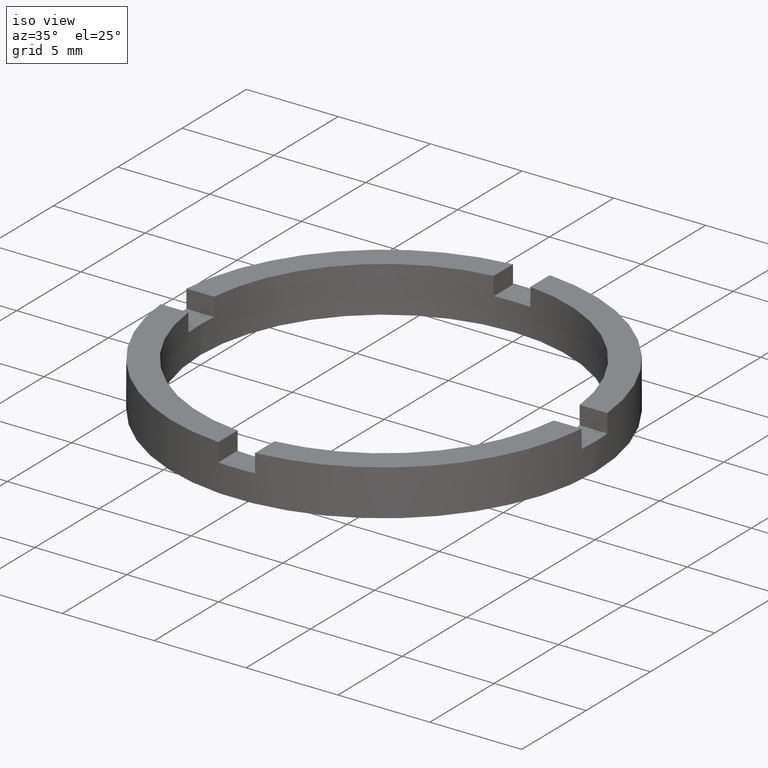
[diagram: clean part render]
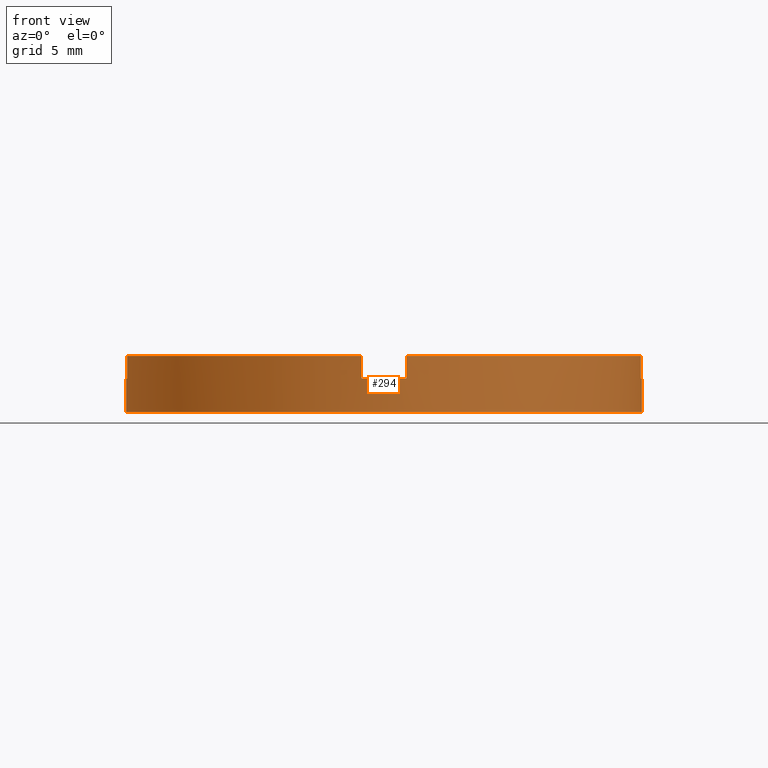
[diagram: tour spotlight — one face highlighted and labeled with its STEP entity id]
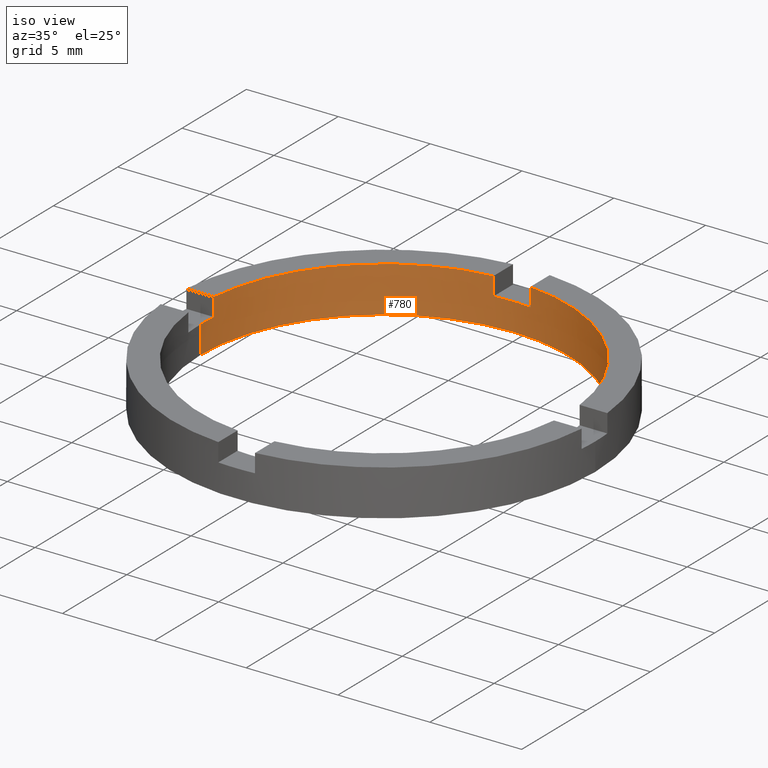
[diagram: tour spotlight — one face highlighted and labeled with its STEP entity id]
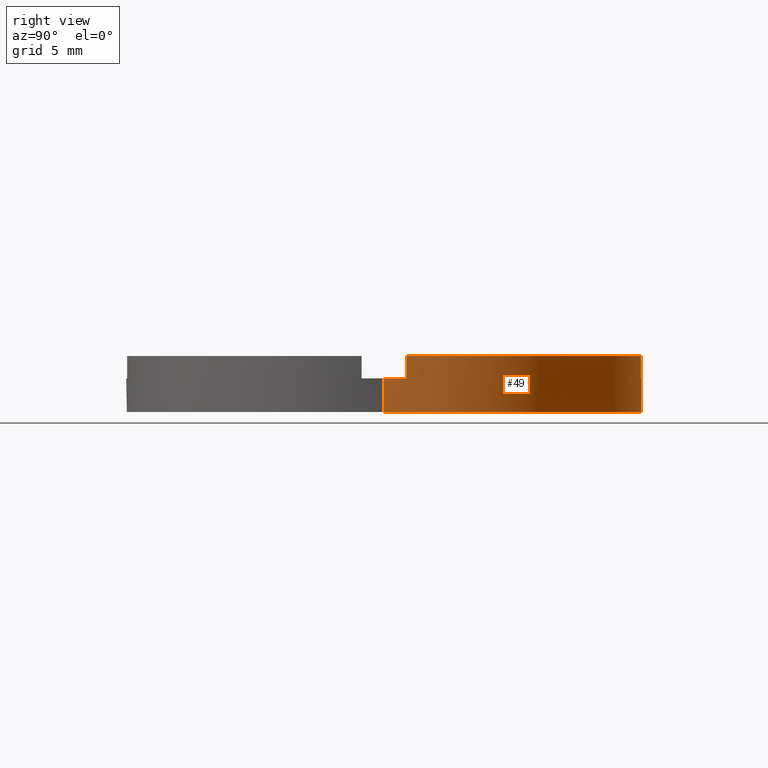
[diagram: tour spotlight — one face highlighted and labeled with its STEP entity id]
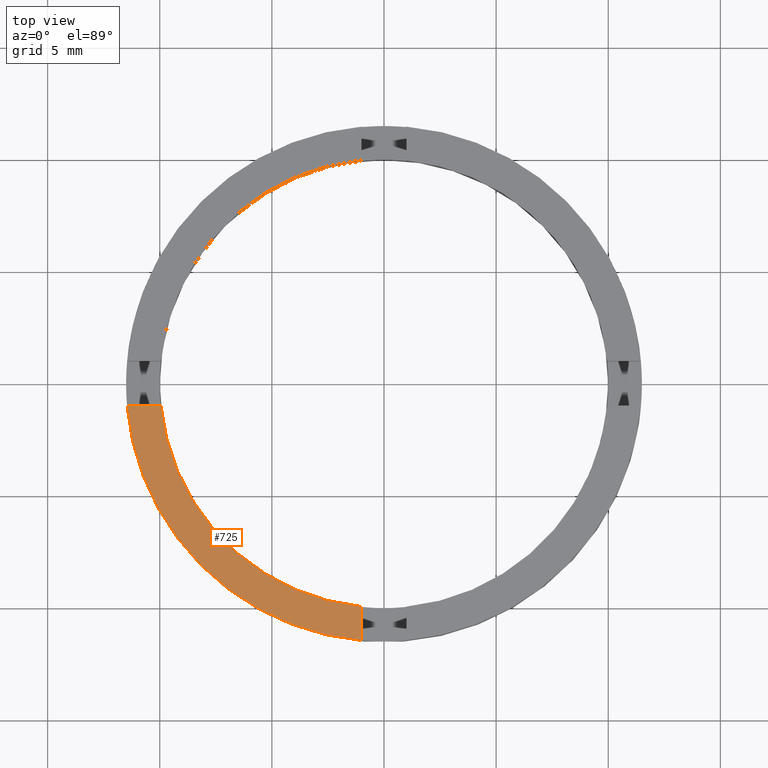
[diagram: tour spotlight — one face highlighted and labeled with its STEP entity id]
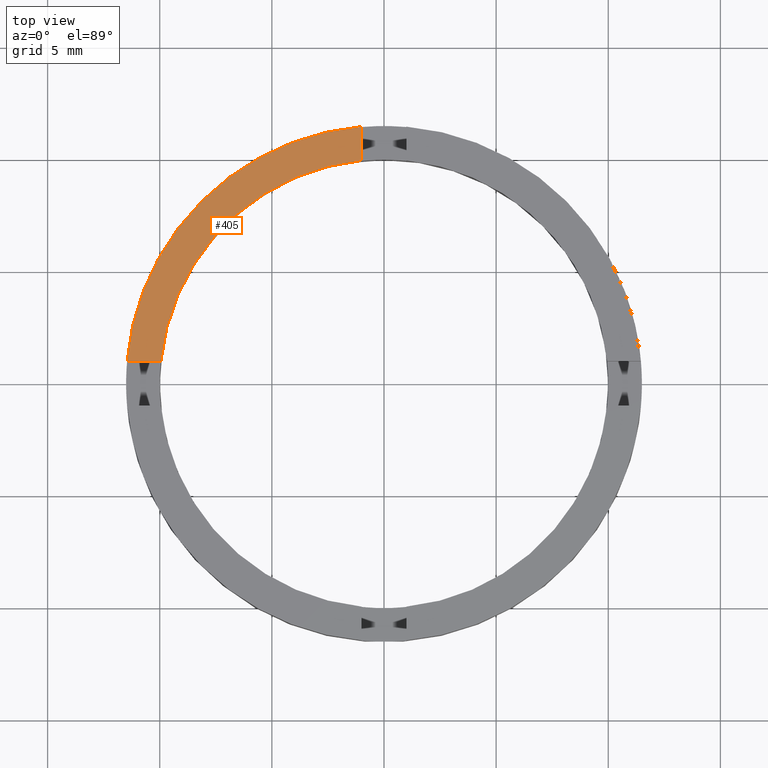
[diagram: tour spotlight — one face highlighted and labeled with its STEP entity id]
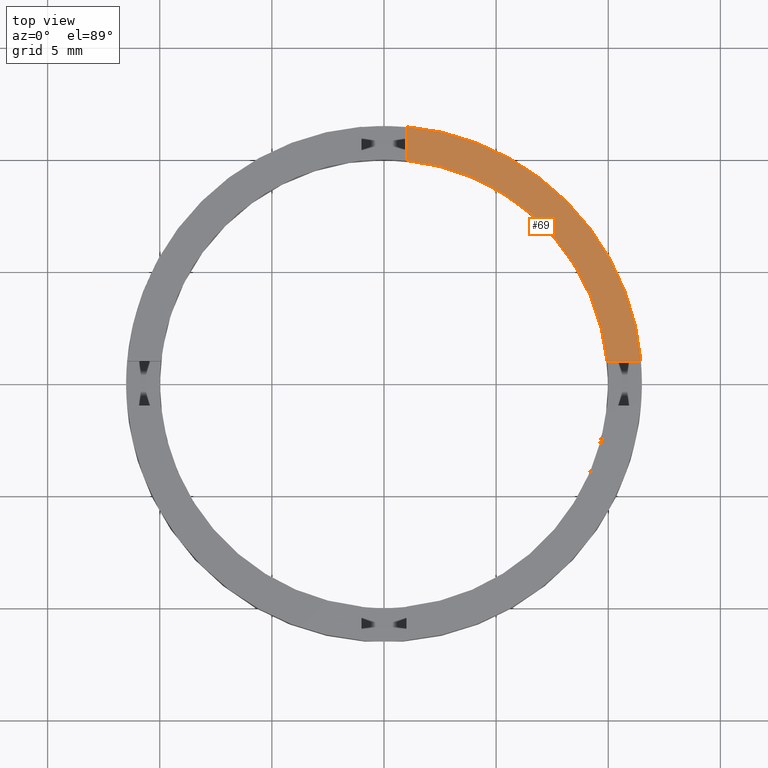
[diagram: tour spotlight — one face highlighted and labeled with its STEP entity id]
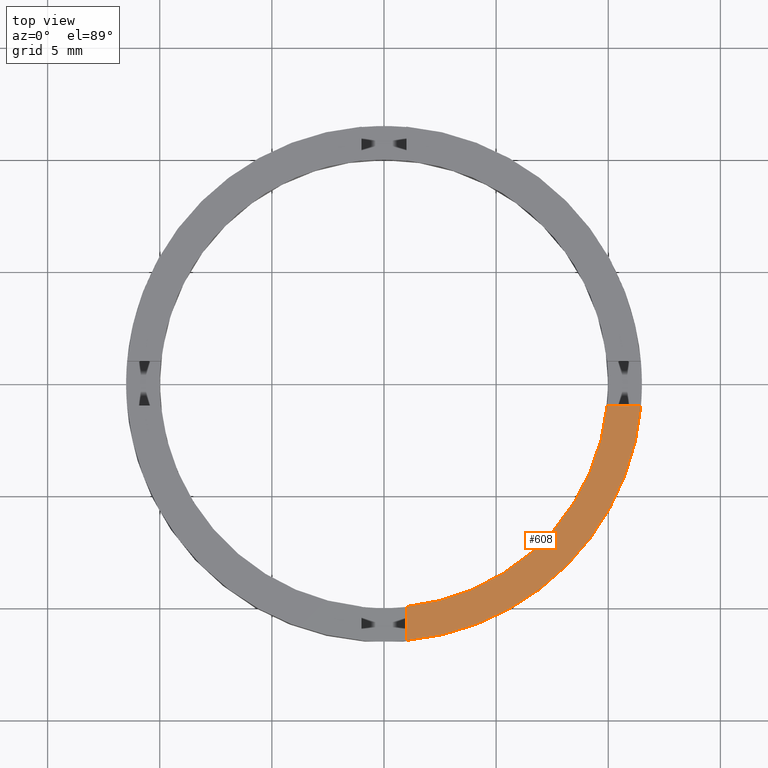
[diagram: tour spotlight — one face highlighted and labeled with its STEP entity id]
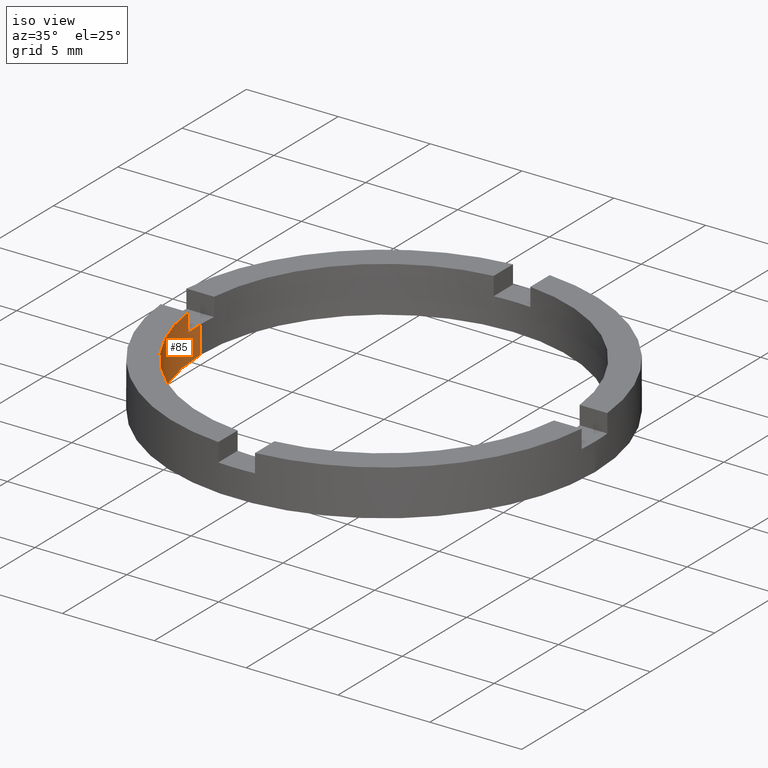
[diagram: tour spotlight — one face highlighted and labeled with its STEP entity id]
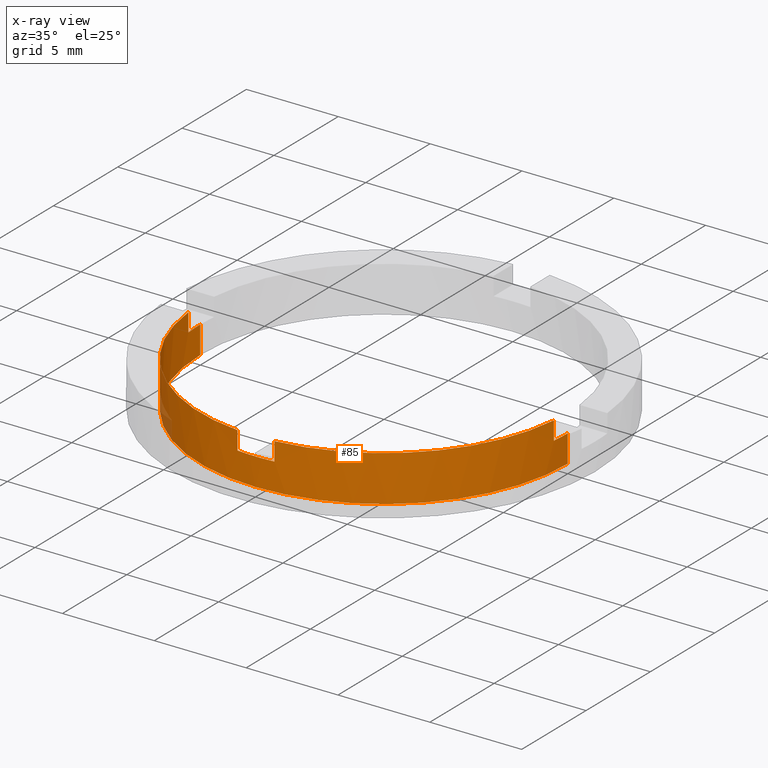
[diagram: x-ray of the same camera — body ghosted, this tour face saturated]
A machine part: a face-by-face anatomy tour. The part has 21 B-rep faces; the first image is the clean iso view, then the 8 largest visible faces are spotlighted one at a time (largest first), each with its STEP entity span.

Face 1 — front view, entity #294. In plain terms, the highlighted cylindrical surface (partial cylindrical patch) has radius 11.5 mm, axis along (-0, -0, -1).
Definition (entity closure, byte-faithful):
#5 = VERTEX_POINT ( 'NONE', #587 ) ;
#19 = VERTEX_POINT ( 'NONE', #772 ) ;
#29 = CARTESIAN_POINT ( 'NONE',  ( 0.000000000000000000, 0.000000000000000000, 1.500000000000000000 ) ) ;
#35 = CARTESIAN_POINT ( 'NONE',  ( -11.45643923738959735, -1.000000000000021982, 2.500000000000000000 ) ) ;
#42 = AXIS2_PLACEMENT_3D ( 'NONE', #252, #186, #297 ) ;
#50 = DIRECTION ( 'NONE',  ( 0.000000000000000000, 0.000000000000000000, 1.000000000000000000 ) ) ;
#51 = AXIS2_PLACEMENT_3D ( 'NONE', #255, #335, #778 ) ;
#53 = EDGE_CURVE ( 'NONE', #484, #455, #142, .T. ) ;
#61 = CARTESIAN_POINT ( 'NONE',  ( 0.000000000000000000, 0.000000000000000000, 0.000000000000000000 ) ) ;
#65 = DIRECTION ( 'NONE',  ( -0.000000000000000000, 0.000000000000000000, 1.000000000000000000 ) ) ;
#84 = CARTESIAN_POINT ( 'NONE',  ( 11.50000000000000000, 1.408343819019456176E-15, 1.500000000000000000 ) ) ;
#93 = AXIS2_PLACEMENT_3D ( 'NONE', #222, #339, #651 ) ;
#101 = EDGE_CURVE ( 'NONE', #483, #496, #437, .T. ) ;
#116 = VECTOR ( 'NONE', #513, 1000.000000000000000 ) ;
#121 = DIRECTION ( 'NONE',  ( 1.000000000000000000, 0.000000000000000000, 0.000000000000000000 ) ) ;
#142 = CIRCLE ( 'NONE', #93, 11.50000000000000000 ) ;
#154 = LINE ( 'NONE', #311, #686 ) ;
#155 = VECTOR ( 'NONE', #600, 1000.000000000000000 ) ;
#158 = ORIENTED_EDGE ( 'NONE', *, *, #101, .T. ) ;
#169 = CYLINDRICAL_SURFACE ( 'NONE', #51, 11.50000000000000000 ) ;
#171 = EDGE_CURVE ( 'NONE', #455, #496, #422, .T. ) ;
#186 = DIRECTION ( 'NONE',  ( 0.000000000000000000, 0.000000000000000000, 1.000000000000000000 ) ) ;
#188 = FACE_OUTER_BOUND ( 'NONE', #697, .T. ) ;
#189 = DIRECTION ( 'NONE',  ( 1.000000000000000000, 0.000000000000000000, 0.000000000000000000 ) ) ;
#200 = CIRCLE ( 'NONE', #42, 11.50000000000000000 ) ;
#207 = VERTEX_POINT ( 'NONE', #478 ) ;
#208 = CIRCLE ( 'NONE', #338, 11.50000000000000000 ) ;
#210 = LINE ( 'NONE', #35, #726 ) ;
#222 = CARTESIAN_POINT ( 'NONE',  ( 0.000000000000000000, 0.000000000000000000, 1.500000000000000000 ) ) ;
#224 = ORIENTED_EDGE ( 'NONE', *, *, #553, .T. ) ;
#225 = CARTESIAN_POINT ( 'NONE',  ( 11.50000000000000000, 1.408343819019456176E-15, 2.500000000000000000 ) ) ;
#228 = VERTEX_POINT ( 'NONE', #330 ) ;
#230 = DIRECTION ( 'NONE',  ( -0.000000000000000000, -0.000000000000000000, -1.000000000000000000 ) ) ;
#235 = ORIENTED_EDGE ( 'NONE', *, *, #595, .T. ) ;
#252 = CARTESIAN_POINT ( 'NONE',  ( 0.000000000000000000, 0.000000000000000000, 1.500000000000000000 ) ) ;
#255 = CARTESIAN_POINT ( 'NONE',  ( 0.000000000000000000, 0.000000000000000000, 2.500000000000000000 ) ) ;
#271 = DIRECTION ( 'NONE',  ( -0.000000000000000000, -0.000000000000000000, -1.000000000000000000 ) ) ;
#279 = CARTESIAN_POINT ( 'NONE',  ( 0.9999999999998363531, -11.45643923738961334, 2.500000000000000000 ) ) ;
#283 = DIRECTION ( 'NONE',  ( 0.000000000000000000, 0.000000000000000000, 1.000000000000000000 ) ) ;
#291 = EDGE_CURVE ( 'NONE', #536, #207, #200, .T. ) ;
#294 = ADVANCED_FACE ( 'NONE', ( #188 ), #169, .T. ) ;
#297 = DIRECTION ( 'NONE',  ( 1.000000000000000000, 0.000000000000000000, 0.000000000000000000 ) ) ;
#301 = CARTESIAN_POINT ( 'NONE',  ( -11.50000000000000000, 0.000000000000000000, 1.500000000000000000 ) ) ;
#311 = CARTESIAN_POINT ( 'NONE',  ( -11.50000000000000000, 0.000000000000000000, 2.500000000000000000 ) ) ;
#323 = CARTESIAN_POINT ( 'NONE',  ( 11.50000000000000000, 1.408343819019456176E-15, 0.000000000000000000 ) ) ;
#330 = CARTESIAN_POINT ( 'NONE',  ( -1.000000000000163647, -11.45643923738958669, 1.500000000000000000 ) ) ;
#335 = DIRECTION ( 'NONE',  ( -0.000000000000000000, -0.000000000000000000, -1.000000000000000000 ) ) ;
#338 = AXIS2_PLACEMENT_3D ( 'NONE', #733, #584, #189 ) ;
#339 = DIRECTION ( 'NONE',  ( 0.000000000000000000, 0.000000000000000000, 1.000000000000000000 ) ) ;
#369 = CARTESIAN_POINT ( 'NONE',  ( 11.45643923738958669, -1.000000000000160094, 2.500000000000000000 ) ) ;
#385 = CIRCLE ( 'NONE', #596, 11.50000000000000000 ) ;
#397 = EDGE_CURVE ( 'NONE', #510, #5, #208, .T. ) ;
#399 = ORIENTED_EDGE ( 'NONE', *, *, #171, .F. ) ;
#409 = EDGE_CURVE ( 'NONE', #19, #504, #466, .T. ) ;
#411 = CARTESIAN_POINT ( 'NONE',  ( 0.000000000000000000, 0.000000000000000000, 2.500000000000000000 ) ) ;
#417 = ORIENTED_EDGE ( 'NONE', *, *, #291, .F. ) ;
#419 = ORIENTED_EDGE ( 'NONE', *, *, #508, .T. ) ;
#422 = LINE ( 'NONE', #225, #155 ) ;
#424 = ORIENTED_EDGE ( 'NONE', *, *, #699, .F. ) ;
#437 = CIRCLE ( 'NONE', #757, 11.50000000000000000 ) ;
#447 = CARTESIAN_POINT ( 'NONE',  ( -1.000000000000163647, -11.45643923738958669, 2.500000000000000000 ) ) ;
#455 = VERTEX_POINT ( 'NONE', #84 ) ;
#459 = VECTOR ( 'NONE', #480, 1000.000000000000000 ) ;
#466 = CIRCLE ( 'NONE', #488, 11.50000000000000000 ) ;
#478 = CARTESIAN_POINT ( 'NONE',  ( -11.45643923738959735, -1.000000000000021982, 1.500000000000000000 ) ) ;
#480 = DIRECTION ( 'NONE',  ( 0.000000000000000000, 0.000000000000000000, 1.000000000000000000 ) ) ;
#483 = VERTEX_POINT ( 'NONE', #601 ) ;
#484 = VERTEX_POINT ( 'NONE', #694 ) ;
#488 = AXIS2_PLACEMENT_3D ( 'NONE', #411, #50, #740 ) ;
#496 = VERTEX_POINT ( 'NONE', #323 ) ;
#500 = ORIENTED_EDGE ( 'NONE', *, *, #397, .F. ) ;
#502 = ORIENTED_EDGE ( 'NONE', *, *, #781, .T. ) ;
#504 = VERTEX_POINT ( 'NONE', #706 ) ;
#508 = EDGE_CURVE ( 'NONE', #484, #5, #721, .T. ) ;
#510 = VERTEX_POINT ( 'NONE', #535 ) ;
#513 = DIRECTION ( 'NONE',  ( -0.000000000000000000, -0.000000000000000000, -1.000000000000000000 ) ) ;
#523 = DIRECTION ( 'NONE',  ( 0.000000000000000000, 0.000000000000000000, 1.000000000000000000 ) ) ;
#535 = CARTESIAN_POINT ( 'NONE',  ( 0.9999999999998363531, -11.45643923738961334, 2.500000000000000000 ) ) ;
#536 = VERTEX_POINT ( 'NONE', #301 ) ;
#540 = DIRECTION ( 'NONE',  ( 1.000000000000000000, 0.000000000000000000, 0.000000000000000000 ) ) ;
#553 = EDGE_CURVE ( 'NONE', #19, #207, #210, .T. ) ;
#584 = DIRECTION ( 'NONE',  ( 0.000000000000000000, 0.000000000000000000, 1.000000000000000000 ) ) ;
#586 = EDGE_CURVE ( 'NONE', #536, #483, #154, .T. ) ;
#587 = CARTESIAN_POINT ( 'NONE',  ( 11.45643923738958669, -1.000000000000160094, 2.500000000000000000 ) ) ;
#595 = EDGE_CURVE ( 'NONE', #510, #720, #658, .T. ) ;
#596 = AXIS2_PLACEMENT_3D ( 'NONE', #29, #65, #121 ) ;
#600 = DIRECTION ( 'NONE',  ( -0.000000000000000000, -0.000000000000000000, -1.000000000000000000 ) ) ;
#601 = CARTESIAN_POINT ( 'NONE',  ( -11.50000000000000000, 0.000000000000000000, 0.000000000000000000 ) ) ;
#610 = LINE ( 'NONE', #447, #612 ) ;
#612 = VECTOR ( 'NONE', #283, 1000.000000000000000 ) ;
#639 = ORIENTED_EDGE ( 'NONE', *, *, #586, .T. ) ;
#651 = DIRECTION ( 'NONE',  ( 1.000000000000000000, 0.000000000000000000, 0.000000000000000000 ) ) ;
#658 = LINE ( 'NONE', #279, #116 ) ;
#664 = ORIENTED_EDGE ( 'NONE', *, *, #409, .F. ) ;
#686 = VECTOR ( 'NONE', #230, 1000.000000000000000 ) ;
#694 = CARTESIAN_POINT ( 'NONE',  ( 11.45643923738958669, -1.000000000000160094, 1.500000000000000000 ) ) ;
#697 = EDGE_LOOP ( 'NONE', ( #399, #752, #419, #500, #235, #424, #502, #664, #224, #417, #639, #158 ) ) ;
#699 = EDGE_CURVE ( 'NONE', #228, #720, #385, .T. ) ;
#706 = CARTESIAN_POINT ( 'NONE',  ( -1.000000000000163647, -11.45643923738958669, 2.500000000000000000 ) ) ;
#710 = CARTESIAN_POINT ( 'NONE',  ( 0.9999999999998363531, -11.45643923738961334, 1.500000000000000000 ) ) ;
#720 = VERTEX_POINT ( 'NONE', #710 ) ;
#721 = LINE ( 'NONE', #369, #459 ) ;
#726 = VECTOR ( 'NONE', #271, 1000.000000000000000 ) ;
#733 = CARTESIAN_POINT ( 'NONE',  ( 0.000000000000000000, 0.000000000000000000, 2.500000000000000000 ) ) ;
#740 = DIRECTION ( 'NONE',  ( 1.000000000000000000, 0.000000000000000000, 0.000000000000000000 ) ) ;
#752 = ORIENTED_EDGE ( 'NONE', *, *, #53, .F. ) ;
#757 = AXIS2_PLACEMENT_3D ( 'NONE', #61, #523, #540 ) ;
#772 = CARTESIAN_POINT ( 'NONE',  ( -11.45643923738959735, -1.000000000000021982, 2.500000000000000000 ) ) ;
#778 = DIRECTION ( 'NONE',  ( -1.000000000000000000, 0.000000000000000000, 0.000000000000000000 ) ) ;
#781 = EDGE_CURVE ( 'NONE', #228, #504, #610, .T. ) ;

Face 2 — iso view, entity #780. In plain terms, the highlighted cylindrical surface (partial cylindrical patch) has radius 10 mm, axis along (-0, -0, -1).
Definition (entity closure, byte-faithful):
#11 = CARTESIAN_POINT ( 'NONE',  ( 0.000000000000000000, 0.000000000000000000, 1.500000000000000000 ) ) ;
#15 = VERTEX_POINT ( 'NONE', #570 ) ;
#17 = CARTESIAN_POINT ( 'NONE',  ( -9.999999999999998224, 0.000000000000000000, 2.500000000000000000 ) ) ;
#26 = CARTESIAN_POINT ( 'NONE',  ( 9.999999999999998224, 1.224646799147353059E-15, 1.500000000000000000 ) ) ;
#33 = CARTESIAN_POINT ( 'NONE',  ( 9.949874371066213641, 0.9999999999998400169, 2.500000000000000000 ) ) ;
#36 = CARTESIAN_POINT ( 'NONE',  ( 9.999999999999998224, 1.224646799147353059E-15, 0.000000000000000000 ) ) ;
#37 = AXIS2_PLACEMENT_3D ( 'NONE', #11, #582, #626 ) ;
#41 = DIRECTION ( 'NONE',  ( 0.000000000000000000, 0.000000000000000000, 1.000000000000000000 ) ) ;
#57 = AXIS2_PLACEMENT_3D ( 'NONE', #525, #76, #157 ) ;
#62 = CARTESIAN_POINT ( 'NONE',  ( 0.000000000000000000, 0.000000000000000000, 2.500000000000000000 ) ) ;
#63 = CARTESIAN_POINT ( 'NONE',  ( -1.000000000000024425, 9.949874371066194101, 2.500000000000000000 ) ) ;
#68 = CARTESIAN_POINT ( 'NONE',  ( 0.9999999999999754641, 9.949874371066199430, 2.500000000000000000 ) ) ;
#71 = EDGE_CURVE ( 'NONE', #276, #413, #425, .T. ) ;
#73 = DIRECTION ( 'NONE',  ( -1.000000000000000000, 0.000000000000000000, 0.000000000000000000 ) ) ;
#74 = EDGE_CURVE ( 'NONE', #531, #537, #152, .T. ) ;
#76 = DIRECTION ( 'NONE',  ( 0.000000000000000000, -0.000000000000000000, 1.000000000000000000 ) ) ;
#82 = EDGE_CURVE ( 'NONE', #490, #15, #166, .T. ) ;
#87 = DIRECTION ( 'NONE',  ( -0.000000000000000000, -0.000000000000000000, -1.000000000000000000 ) ) ;
#89 = AXIS2_PLACEMENT_3D ( 'NONE', #274, #755, #234 ) ;
#108 = DIRECTION ( 'NONE',  ( 1.000000000000000000, 0.000000000000000000, 0.000000000000000000 ) ) ;
#125 = DIRECTION ( 'NONE',  ( -0.000000000000000000, -0.000000000000000000, -1.000000000000000000 ) ) ;
#127 = ORIENTED_EDGE ( 'NONE', *, *, #766, .F. ) ;
#129 = ORIENTED_EDGE ( 'NONE', *, *, #353, .F. ) ;
#130 = DIRECTION ( 'NONE',  ( 0.000000000000000000, 0.000000000000000000, 1.000000000000000000 ) ) ;
#145 = ORIENTED_EDGE ( 'NONE', *, *, #253, .F. ) ;
#152 = CIRCLE ( 'NONE', #280, 9.999999999999998224 ) ;
#157 = DIRECTION ( 'NONE',  ( 1.000000000000000000, 0.000000000000000000, 0.000000000000000000 ) ) ;
#164 = VERTEX_POINT ( 'NONE', #352 ) ;
#165 = VECTOR ( 'NONE', #615, 1000.000000000000000 ) ;
#166 = CIRCLE ( 'NONE', #219, 9.999999999999998224 ) ;
#178 = CARTESIAN_POINT ( 'NONE',  ( 0.000000000000000000, 0.000000000000000000, 2.500000000000000000 ) ) ;
#181 = EDGE_CURVE ( 'NONE', #531, #512, #450, .T. ) ;
#192 = CIRCLE ( 'NONE', #89, 9.999999999999998224 ) ;
#202 = VECTOR ( 'NONE', #130, 1000.000000000000000 ) ;
#219 = AXIS2_PLACEMENT_3D ( 'NONE', #591, #448, #108 ) ;
#234 = DIRECTION ( 'NONE',  ( 1.000000000000000000, 0.000000000000000000, 0.000000000000000000 ) ) ;
#253 = EDGE_CURVE ( 'NONE', #490, #750, #679, .T. ) ;
#256 = CARTESIAN_POINT ( 'NONE',  ( -9.949874371066199430, 0.9999999999999783507, 1.500000000000000000 ) ) ;
#258 = ORIENTED_EDGE ( 'NONE', *, *, #529, .T. ) ;
#261 = ORIENTED_EDGE ( 'NONE', *, *, #404, .T. ) ;
#274 = CARTESIAN_POINT ( 'NONE',  ( 0.000000000000000000, 0.000000000000000000, 0.000000000000000000 ) ) ;
#276 = VERTEX_POINT ( 'NONE', #408 ) ;
#280 = AXIS2_PLACEMENT_3D ( 'NONE', #310, #645, #585 ) ;
#284 = DIRECTION ( 'NONE',  ( 0.000000000000000000, 0.000000000000000000, 1.000000000000000000 ) ) ;
#287 = CARTESIAN_POINT ( 'NONE',  ( -1.000000000000024425, 9.949874371066194101, 1.500000000000000000 ) ) ;
#296 = EDGE_CURVE ( 'NONE', #276, #512, #439, .T. ) ;
#298 = CARTESIAN_POINT ( 'NONE',  ( -9.999999999999998224, 0.000000000000000000, 1.500000000000000000 ) ) ;
#310 = CARTESIAN_POINT ( 'NONE',  ( 0.000000000000000000, 0.000000000000000000, 1.500000000000000000 ) ) ;
#325 = CARTESIAN_POINT ( 'NONE',  ( 9.949874371066213641, 0.9999999999998400169, 1.500000000000000000 ) ) ;
#352 = CARTESIAN_POINT ( 'NONE',  ( -9.999999999999998224, 0.000000000000000000, 0.000000000000000000 ) ) ;
#353 = EDGE_CURVE ( 'NONE', #749, #15, #481, .T. ) ;
#355 = CYLINDRICAL_SURFACE ( 'NONE', #530, 9.999999999999998224 ) ;
#388 = AXIS2_PLACEMENT_3D ( 'NONE', #178, #41, #482 ) ;
#404 = EDGE_CURVE ( 'NONE', #537, #164, #719, .T. ) ;
#408 = CARTESIAN_POINT ( 'NONE',  ( -1.000000000000024425, 9.949874371066194101, 2.500000000000000000 ) ) ;
#413 = VERTEX_POINT ( 'NONE', #287 ) ;
#425 = LINE ( 'NONE', #63, #671 ) ;
#432 = LINE ( 'NONE', #654, #688 ) ;
#435 = VERTEX_POINT ( 'NONE', #36 ) ;
#439 = CIRCLE ( 'NONE', #388, 9.999999999999998224 ) ;
#448 = DIRECTION ( 'NONE',  ( 0.000000000000000000, 0.000000000000000000, 1.000000000000000000 ) ) ;
#450 = LINE ( 'NONE', #573, #202 ) ;
#454 = VECTOR ( 'NONE', #284, 1000.000000000000000 ) ;
#467 = EDGE_CURVE ( 'NONE', #749, #413, #727, .T. ) ;
#481 = LINE ( 'NONE', #68, #454 ) ;
#482 = DIRECTION ( 'NONE',  ( 1.000000000000000000, 0.000000000000000000, 0.000000000000000000 ) ) ;
#486 = CARTESIAN_POINT ( 'NONE',  ( 9.949874371066213641, 0.9999999999998400169, 2.500000000000000000 ) ) ;
#490 = VERTEX_POINT ( 'NONE', #33 ) ;
#497 = ORIENTED_EDGE ( 'NONE', *, *, #296, .T. ) ;
#498 = ORIENTED_EDGE ( 'NONE', *, *, #637, .F. ) ;
#501 = ORIENTED_EDGE ( 'NONE', *, *, #467, .T. ) ;
#512 = VERTEX_POINT ( 'NONE', #574 ) ;
#524 = EDGE_LOOP ( 'NONE', ( #498, #258, #145, #669, #129, #501, #728, #497, #759, #685, #261, #127 ) ) ;
#525 = CARTESIAN_POINT ( 'NONE',  ( 0.000000000000000000, 0.000000000000000000, 1.500000000000000000 ) ) ;
#529 = EDGE_CURVE ( 'NONE', #623, #750, #736, .T. ) ;
#530 = AXIS2_PLACEMENT_3D ( 'NONE', #62, #125, #73 ) ;
#531 = VERTEX_POINT ( 'NONE', #256 ) ;
#537 = VERTEX_POINT ( 'NONE', #298 ) ;
#550 = DIRECTION ( 'NONE',  ( -0.000000000000000000, -0.000000000000000000, -1.000000000000000000 ) ) ;
#570 = CARTESIAN_POINT ( 'NONE',  ( 0.9999999999999754641, 9.949874371066199430, 2.500000000000000000 ) ) ;
#573 = CARTESIAN_POINT ( 'NONE',  ( -9.949874371066199430, 0.9999999999999783507, 2.500000000000000000 ) ) ;
#574 = CARTESIAN_POINT ( 'NONE',  ( -9.949874371066199430, 0.9999999999999783507, 2.500000000000000000 ) ) ;
#582 = DIRECTION ( 'NONE',  ( 0.000000000000000000, 0.000000000000000000, 1.000000000000000000 ) ) ;
#585 = DIRECTION ( 'NONE',  ( 1.000000000000000000, 0.000000000000000000, 0.000000000000000000 ) ) ;
#591 = CARTESIAN_POINT ( 'NONE',  ( 0.000000000000000000, 0.000000000000000000, 2.500000000000000000 ) ) ;
#615 = DIRECTION ( 'NONE',  ( -0.000000000000000000, -0.000000000000000000, -1.000000000000000000 ) ) ;
#623 = VERTEX_POINT ( 'NONE', #26 ) ;
#626 = DIRECTION ( 'NONE',  ( 1.000000000000000000, 0.000000000000000000, 0.000000000000000000 ) ) ;
#637 = EDGE_CURVE ( 'NONE', #623, #435, #432, .T. ) ;
#645 = DIRECTION ( 'NONE',  ( 0.000000000000000000, 0.000000000000000000, 1.000000000000000000 ) ) ;
#654 = CARTESIAN_POINT ( 'NONE',  ( 9.999999999999998224, 1.224646799147353059E-15, 2.500000000000000000 ) ) ;
#669 = ORIENTED_EDGE ( 'NONE', *, *, #82, .T. ) ;
#671 = VECTOR ( 'NONE', #550, 1000.000000000000000 ) ;
#679 = LINE ( 'NONE', #486, #165 ) ;
#685 = ORIENTED_EDGE ( 'NONE', *, *, #74, .T. ) ;
#688 = VECTOR ( 'NONE', #760, 1000.000000000000000 ) ;
#698 = FACE_OUTER_BOUND ( 'NONE', #524, .T. ) ;
#719 = LINE ( 'NONE', #17, #739 ) ;
#727 = CIRCLE ( 'NONE', #57, 9.999999999999998224 ) ;
#728 = ORIENTED_EDGE ( 'NONE', *, *, #71, .F. ) ;
#736 = CIRCLE ( 'NONE', #37, 9.999999999999998224 ) ;
#739 = VECTOR ( 'NONE', #87, 1000.000000000000000 ) ;
#749 = VERTEX_POINT ( 'NONE', #771 ) ;
#750 = VERTEX_POINT ( 'NONE', #325 ) ;
#755 = DIRECTION ( 'NONE',  ( 0.000000000000000000, 0.000000000000000000, 1.000000000000000000 ) ) ;
#759 = ORIENTED_EDGE ( 'NONE', *, *, #181, .F. ) ;
#760 = DIRECTION ( 'NONE',  ( -0.000000000000000000, -0.000000000000000000, -1.000000000000000000 ) ) ;
#766 = EDGE_CURVE ( 'NONE', #435, #164, #192, .T. ) ;
#771 = CARTESIAN_POINT ( 'NONE',  ( 0.9999999999999754641, 9.949874371066199430, 1.500000000000000000 ) ) ;
#780 = ADVANCED_FACE ( 'NONE', ( #698 ), #355, .F. ) ;

Face 3 — right view, entity #49. In plain terms, the highlighted cylindrical surface (partial cylindrical patch) has radius 11.5 mm, axis along (-0, -0, -1).
Definition (entity closure, byte-faithful):
#7 = ORIENTED_EDGE ( 'NONE', *, *, #171, .T. ) ;
#9 = EDGE_CURVE ( 'NONE', #172, #731, #636, .T. ) ;
#13 = ORIENTED_EDGE ( 'NONE', *, *, #586, .F. ) ;
#18 = ORIENTED_EDGE ( 'NONE', *, *, #45, .T. ) ;
#32 = DIRECTION ( 'NONE',  ( -0.000000000000000000, -0.000000000000000000, -1.000000000000000000 ) ) ;
#43 = CARTESIAN_POINT ( 'NONE',  ( 0.000000000000000000, 0.000000000000000000, 1.500000000000000000 ) ) ;
#45 = EDGE_CURVE ( 'NONE', #761, #646, #401, .T. ) ;
#49 = ADVANCED_FACE ( 'NONE', ( #625 ), #140, .T. ) ;
#54 = DIRECTION ( 'NONE',  ( 0.000000000000000000, 0.000000000000000000, 1.000000000000000000 ) ) ;
#55 = DIRECTION ( 'NONE',  ( -0.000000000000000000, -0.000000000000000000, -1.000000000000000000 ) ) ;
#67 = CARTESIAN_POINT ( 'NONE',  ( -11.45643923738960090, 0.9999999999999781286, 1.500000000000000000 ) ) ;
#72 = CARTESIAN_POINT ( 'NONE',  ( 0.9999999999999754641, 11.45643923738960090, 1.500000000000000000 ) ) ;
#78 = EDGE_CURVE ( 'NONE', #761, #536, #161, .T. ) ;
#84 = CARTESIAN_POINT ( 'NONE',  ( 11.50000000000000000, 1.408343819019456176E-15, 1.500000000000000000 ) ) ;
#86 = DIRECTION ( 'NONE',  ( 0.000000000000000000, 0.000000000000000000, 1.000000000000000000 ) ) ;
#88 = AXIS2_PLACEMENT_3D ( 'NONE', #260, #55, #558 ) ;
#90 = DIRECTION ( 'NONE',  ( 1.000000000000000000, 0.000000000000000000, 0.000000000000000000 ) ) ;
#126 = CARTESIAN_POINT ( 'NONE',  ( -1.000000000000024425, 11.45643923738959735, 2.500000000000000000 ) ) ;
#128 = DIRECTION ( 'NONE',  ( 1.000000000000000000, 0.000000000000000000, 0.000000000000000000 ) ) ;
#140 = CYLINDRICAL_SURFACE ( 'NONE', #88, 11.50000000000000000 ) ;
#143 = CARTESIAN_POINT ( 'NONE',  ( 0.9999999999999754641, 11.45643923738960090, 2.500000000000000000 ) ) ;
#144 = ORIENTED_EDGE ( 'NONE', *, *, #723, .F. ) ;
#154 = LINE ( 'NONE', #311, #686 ) ;
#155 = VECTOR ( 'NONE', #600, 1000.000000000000000 ) ;
#159 = CIRCLE ( 'NONE', #737, 11.50000000000000000 ) ;
#161 = CIRCLE ( 'NONE', #303, 11.50000000000000000 ) ;
#171 = EDGE_CURVE ( 'NONE', #455, #496, #422, .T. ) ;
#172 = VERTEX_POINT ( 'NONE', #367 ) ;
#173 = DIRECTION ( 'NONE',  ( 1.000000000000000000, 0.000000000000000000, 0.000000000000000000 ) ) ;
#176 = ORIENTED_EDGE ( 'NONE', *, *, #602, .F. ) ;
#205 = CIRCLE ( 'NONE', #661, 11.50000000000000000 ) ;
#211 = CIRCLE ( 'NONE', #243, 11.50000000000000000 ) ;
#212 = LINE ( 'NONE', #143, #456 ) ;
#225 = CARTESIAN_POINT ( 'NONE',  ( 11.50000000000000000, 1.408343819019456176E-15, 2.500000000000000000 ) ) ;
#230 = DIRECTION ( 'NONE',  ( -0.000000000000000000, -0.000000000000000000, -1.000000000000000000 ) ) ;
#242 = DIRECTION ( 'NONE',  ( 0.000000000000000000, 0.000000000000000000, 1.000000000000000000 ) ) ;
#243 = AXIS2_PLACEMENT_3D ( 'NONE', #556, #242, #128 ) ;
#260 = CARTESIAN_POINT ( 'NONE',  ( 0.000000000000000000, 0.000000000000000000, 2.500000000000000000 ) ) ;
#265 = ORIENTED_EDGE ( 'NONE', *, *, #562, .T. ) ;
#270 = VERTEX_POINT ( 'NONE', #581 ) ;
#288 = EDGE_CURVE ( 'NONE', #455, #382, #431, .T. ) ;
#289 = CARTESIAN_POINT ( 'NONE',  ( 11.45643923738961334, 0.9999999999998400169, 1.500000000000000000 ) ) ;
#290 = CARTESIAN_POINT ( 'NONE',  ( 0.000000000000000000, 0.000000000000000000, 1.500000000000000000 ) ) ;
#301 = CARTESIAN_POINT ( 'NONE',  ( -11.50000000000000000, 0.000000000000000000, 1.500000000000000000 ) ) ;
#303 = AXIS2_PLACEMENT_3D ( 'NONE', #345, #54, #90 ) ;
#305 = AXIS2_PLACEMENT_3D ( 'NONE', #326, #607, #377 ) ;
#311 = CARTESIAN_POINT ( 'NONE',  ( -11.50000000000000000, 0.000000000000000000, 2.500000000000000000 ) ) ;
#314 = CARTESIAN_POINT ( 'NONE',  ( 0.000000000000000000, 0.000000000000000000, 0.000000000000000000 ) ) ;
#320 = DIRECTION ( 'NONE',  ( -0.000000000000000000, -0.000000000000000000, -1.000000000000000000 ) ) ;
#323 = CARTESIAN_POINT ( 'NONE',  ( 11.50000000000000000, 1.408343819019456176E-15, 0.000000000000000000 ) ) ;
#326 = CARTESIAN_POINT ( 'NONE',  ( 0.000000000000000000, 0.000000000000000000, 2.500000000000000000 ) ) ;
#345 = CARTESIAN_POINT ( 'NONE',  ( 0.000000000000000000, 0.000000000000000000, 1.500000000000000000 ) ) ;
#351 = EDGE_CURVE ( 'NONE', #366, #382, #732, .T. ) ;
#366 = VERTEX_POINT ( 'NONE', #604 ) ;
#367 = CARTESIAN_POINT ( 'NONE',  ( -1.000000000000024425, 11.45643923738959735, 2.500000000000000000 ) ) ;
#377 = DIRECTION ( 'NONE',  ( 1.000000000000000000, 0.000000000000000000, 0.000000000000000000 ) ) ;
#382 = VERTEX_POINT ( 'NONE', #289 ) ;
#401 = LINE ( 'NONE', #528, #403 ) ;
#402 = CARTESIAN_POINT ( 'NONE',  ( 11.45643923738961334, 0.9999999999998400169, 2.500000000000000000 ) ) ;
#403 = VECTOR ( 'NONE', #552, 1000.000000000000000 ) ;
#422 = LINE ( 'NONE', #225, #155 ) ;
#430 = ORIENTED_EDGE ( 'NONE', *, *, #560, .F. ) ;
#431 = CIRCLE ( 'NONE', #746, 11.50000000000000000 ) ;
#455 = VERTEX_POINT ( 'NONE', #84 ) ;
#456 = VECTOR ( 'NONE', #569, 1000.000000000000000 ) ;
#471 = VECTOR ( 'NONE', #32, 1000.000000000000000 ) ;
#473 = EDGE_CURVE ( 'NONE', #476, #270, #212, .T. ) ;
#476 = VERTEX_POINT ( 'NONE', #72 ) ;
#483 = VERTEX_POINT ( 'NONE', #601 ) ;
#496 = VERTEX_POINT ( 'NONE', #323 ) ;
#499 = ORIENTED_EDGE ( 'NONE', *, *, #9, .T. ) ;
#528 = CARTESIAN_POINT ( 'NONE',  ( -11.45643923738960090, 0.9999999999999781286, 2.500000000000000000 ) ) ;
#532 = DIRECTION ( 'NONE',  ( 0.000000000000000000, 0.000000000000000000, 1.000000000000000000 ) ) ;
#533 = ORIENTED_EDGE ( 'NONE', *, *, #351, .T. ) ;
#536 = VERTEX_POINT ( 'NONE', #301 ) ;
#538 = CARTESIAN_POINT ( 'NONE',  ( -1.000000000000024425, 11.45643923738959735, 1.500000000000000000 ) ) ;
#539 = ORIENTED_EDGE ( 'NONE', *, *, #78, .F. ) ;
#552 = DIRECTION ( 'NONE',  ( 0.000000000000000000, 0.000000000000000000, 1.000000000000000000 ) ) ;
#556 = CARTESIAN_POINT ( 'NONE',  ( 0.000000000000000000, 0.000000000000000000, 2.500000000000000000 ) ) ;
#558 = DIRECTION ( 'NONE',  ( -1.000000000000000000, 0.000000000000000000, 0.000000000000000000 ) ) ;
#560 = EDGE_CURVE ( 'NONE', #172, #646, #211, .T. ) ;
#562 = EDGE_CURVE ( 'NONE', #496, #483, #205, .T. ) ;
#563 = DIRECTION ( 'NONE',  ( 1.000000000000000000, 0.000000000000000000, 0.000000000000000000 ) ) ;
#569 = DIRECTION ( 'NONE',  ( 0.000000000000000000, 0.000000000000000000, 1.000000000000000000 ) ) ;
#581 = CARTESIAN_POINT ( 'NONE',  ( 0.9999999999999754641, 11.45643923738960090, 2.500000000000000000 ) ) ;
#586 = EDGE_CURVE ( 'NONE', #536, #483, #154, .T. ) ;
#600 = DIRECTION ( 'NONE',  ( -0.000000000000000000, -0.000000000000000000, -1.000000000000000000 ) ) ;
#601 = CARTESIAN_POINT ( 'NONE',  ( -11.50000000000000000, 0.000000000000000000, 0.000000000000000000 ) ) ;
#602 = EDGE_CURVE ( 'NONE', #476, #731, #159, .T. ) ;
#604 = CARTESIAN_POINT ( 'NONE',  ( 11.45643923738961334, 0.9999999999998400169, 2.500000000000000000 ) ) ;
#605 = DIRECTION ( 'NONE',  ( 1.000000000000000000, 0.000000000000000000, 0.000000000000000000 ) ) ;
#607 = DIRECTION ( 'NONE',  ( 0.000000000000000000, 0.000000000000000000, 1.000000000000000000 ) ) ;
#625 = FACE_OUTER_BOUND ( 'NONE', #666, .T. ) ;
#636 = LINE ( 'NONE', #126, #649 ) ;
#646 = VERTEX_POINT ( 'NONE', #700 ) ;
#649 = VECTOR ( 'NONE', #320, 1000.000000000000000 ) ;
#656 = ORIENTED_EDGE ( 'NONE', *, *, #288, .F. ) ;
#661 = AXIS2_PLACEMENT_3D ( 'NONE', #314, #532, #563 ) ;
#666 = EDGE_LOOP ( 'NONE', ( #656, #7, #265, #13, #539, #18, #430, #499, #176, #748, #144, #533 ) ) ;
#686 = VECTOR ( 'NONE', #230, 1000.000000000000000 ) ;
#700 = CARTESIAN_POINT ( 'NONE',  ( -11.45643923738960090, 0.9999999999999781286, 2.500000000000000000 ) ) ;
#708 = CIRCLE ( 'NONE', #305, 11.50000000000000000 ) ;
#723 = EDGE_CURVE ( 'NONE', #366, #270, #708, .T. ) ;
#731 = VERTEX_POINT ( 'NONE', #538 ) ;
#732 = LINE ( 'NONE', #402, #471 ) ;
#737 = AXIS2_PLACEMENT_3D ( 'NONE', #290, #767, #605 ) ;
#746 = AXIS2_PLACEMENT_3D ( 'NONE', #43, #86, #173 ) ;
#748 = ORIENTED_EDGE ( 'NONE', *, *, #473, .T. ) ;
#761 = VERTEX_POINT ( 'NONE', #67 ) ;
#767 = DIRECTION ( 'NONE',  ( 0.000000000000000000, -0.000000000000000000, 1.000000000000000000 ) ) ;

Face 4 — top view, entity #725. In plain terms, the highlighted planar face has unit normal (0, 0, 1).
Definition (entity closure, byte-faithful):
#8 = CARTESIAN_POINT ( 'NONE',  ( -1.500000000000185185, -1.000000000000020206, 2.500000000000000000 ) ) ;
#19 = VERTEX_POINT ( 'NONE', #772 ) ;
#47 = DIRECTION ( 'NONE',  ( 0.000000000000000000, 0.000000000000000000, 1.000000000000000000 ) ) ;
#50 = DIRECTION ( 'NONE',  ( 0.000000000000000000, 0.000000000000000000, 1.000000000000000000 ) ) ;
#83 = DIRECTION ( 'NONE',  ( 1.000000000000000000, 1.734723475976807341E-16, -0.000000000000000000 ) ) ;
#139 = VECTOR ( 'NONE', #83, 1000.000000000000000 ) ;
#174 = VECTOR ( 'NONE', #517, 1000.000000000000000 ) ;
#187 = LINE ( 'NONE', #8, #139 ) ;
#226 = VERTEX_POINT ( 'NONE', #691 ) ;
#254 = EDGE_CURVE ( 'NONE', #226, #440, #716, .T. ) ;
#259 = EDGE_CURVE ( 'NONE', #19, #226, #187, .T. ) ;
#295 = PLANE ( 'NONE',  #458 ) ;
#409 = EDGE_CURVE ( 'NONE', #19, #504, #466, .T. ) ;
#411 = CARTESIAN_POINT ( 'NONE',  ( 0.000000000000000000, 0.000000000000000000, 2.500000000000000000 ) ) ;
#427 = LINE ( 'NONE', #559, #174 ) ;
#436 = FACE_OUTER_BOUND ( 'NONE', #446, .T. ) ;
#440 = VERTEX_POINT ( 'NONE', #684 ) ;
#446 = EDGE_LOOP ( 'NONE', ( #763, #682, #494, #712 ) ) ;
#449 = AXIS2_PLACEMENT_3D ( 'NONE', #546, #47, #730 ) ;
#458 = AXIS2_PLACEMENT_3D ( 'NONE', #485, #543, #576 ) ;
#466 = CIRCLE ( 'NONE', #488, 11.50000000000000000 ) ;
#485 = CARTESIAN_POINT ( 'NONE',  ( 0.000000000000000000, 0.000000000000000000, 2.500000000000000000 ) ) ;
#488 = AXIS2_PLACEMENT_3D ( 'NONE', #411, #50, #740 ) ;
#494 = ORIENTED_EDGE ( 'NONE', *, *, #259, .F. ) ;
#504 = VERTEX_POINT ( 'NONE', #706 ) ;
#517 = DIRECTION ( 'NONE',  ( 1.301042606982605567E-16, -1.000000000000000000, 0.000000000000000000 ) ) ;
#543 = DIRECTION ( 'NONE',  ( 0.000000000000000000, 0.000000000000000000, 1.000000000000000000 ) ) ;
#546 = CARTESIAN_POINT ( 'NONE',  ( 0.000000000000000000, 0.000000000000000000, 2.500000000000000000 ) ) ;
#559 = CARTESIAN_POINT ( 'NONE',  ( -1.000000000000164979, -1.500000000000181632, 2.500000000000000000 ) ) ;
#576 = DIRECTION ( 'NONE',  ( 1.000000000000000000, 0.000000000000000000, -0.000000000000000000 ) ) ;
#606 = EDGE_CURVE ( 'NONE', #440, #504, #427, .T. ) ;
#682 = ORIENTED_EDGE ( 'NONE', *, *, #254, .F. ) ;
#684 = CARTESIAN_POINT ( 'NONE',  ( -1.000000000000163869, -9.949874371066179890, 2.500000000000000000 ) ) ;
#691 = CARTESIAN_POINT ( 'NONE',  ( -9.949874371066195877, -1.000000000000021760, 2.500000000000000000 ) ) ;
#706 = CARTESIAN_POINT ( 'NONE',  ( -1.000000000000163647, -11.45643923738958669, 2.500000000000000000 ) ) ;
#712 = ORIENTED_EDGE ( 'NONE', *, *, #409, .T. ) ;
#716 = CIRCLE ( 'NONE', #449, 9.999999999999998224 ) ;
#725 = ADVANCED_FACE ( 'NONE', ( #436 ), #295, .T. ) ;
#730 = DIRECTION ( 'NONE',  ( 1.000000000000000000, 0.000000000000000000, 0.000000000000000000 ) ) ;
#740 = DIRECTION ( 'NONE',  ( 1.000000000000000000, 0.000000000000000000, 0.000000000000000000 ) ) ;
#763 = ORIENTED_EDGE ( 'NONE', *, *, #606, .F. ) ;
#772 = CARTESIAN_POINT ( 'NONE',  ( -11.45643923738959735, -1.000000000000021982, 2.500000000000000000 ) ) ;

Face 5 — top view, entity #405. In plain terms, the highlighted planar face has unit normal (0, 0, 1).
Definition (entity closure, byte-faithful):
#12 = DIRECTION ( 'NONE',  ( 1.000000000000000000, 0.000000000000000000, -0.000000000000000000 ) ) ;
#41 = DIRECTION ( 'NONE',  ( 0.000000000000000000, 0.000000000000000000, 1.000000000000000000 ) ) ;
#113 = ORIENTED_EDGE ( 'NONE', *, *, #296, .F. ) ;
#128 = DIRECTION ( 'NONE',  ( 1.000000000000000000, 0.000000000000000000, 0.000000000000000000 ) ) ;
#172 = VERTEX_POINT ( 'NONE', #367 ) ;
#178 = CARTESIAN_POINT ( 'NONE',  ( 0.000000000000000000, 0.000000000000000000, 2.500000000000000000 ) ) ;
#211 = CIRCLE ( 'NONE', #243, 11.50000000000000000 ) ;
#242 = DIRECTION ( 'NONE',  ( 0.000000000000000000, 0.000000000000000000, 1.000000000000000000 ) ) ;
#243 = AXIS2_PLACEMENT_3D ( 'NONE', #556, #242, #128 ) ;
#269 = AXIS2_PLACEMENT_3D ( 'NONE', #337, #548, #12 ) ;
#276 = VERTEX_POINT ( 'NONE', #408 ) ;
#293 = DIRECTION ( 'NONE',  ( -0.000000000000000000, -1.000000000000000000, -0.000000000000000000 ) ) ;
#296 = EDGE_CURVE ( 'NONE', #276, #512, #439, .T. ) ;
#307 = EDGE_CURVE ( 'NONE', #172, #276, #693, .T. ) ;
#329 = EDGE_CURVE ( 'NONE', #512, #646, #433, .T. ) ;
#337 = CARTESIAN_POINT ( 'NONE',  ( 0.000000000000000000, 0.000000000000000000, 2.500000000000000000 ) ) ;
#367 = CARTESIAN_POINT ( 'NONE',  ( -1.000000000000024425, 11.45643923738959735, 2.500000000000000000 ) ) ;
#370 = EDGE_LOOP ( 'NONE', ( #406, #628, #765, #113 ) ) ;
#388 = AXIS2_PLACEMENT_3D ( 'NONE', #178, #41, #482 ) ;
#405 = ADVANCED_FACE ( 'NONE', ( #734 ), #629, .T. ) ;
#406 = ORIENTED_EDGE ( 'NONE', *, *, #307, .F. ) ;
#408 = CARTESIAN_POINT ( 'NONE',  ( -1.000000000000024425, 9.949874371066194101, 2.500000000000000000 ) ) ;
#433 = LINE ( 'NONE', #597, #434 ) ;
#434 = VECTOR ( 'NONE', #768, 1000.000000000000000 ) ;
#439 = CIRCLE ( 'NONE', #388, 9.999999999999998224 ) ;
#482 = DIRECTION ( 'NONE',  ( 1.000000000000000000, 0.000000000000000000, 0.000000000000000000 ) ) ;
#512 = VERTEX_POINT ( 'NONE', #574 ) ;
#548 = DIRECTION ( 'NONE',  ( 0.000000000000000000, 0.000000000000000000, 1.000000000000000000 ) ) ;
#556 = CARTESIAN_POINT ( 'NONE',  ( 0.000000000000000000, 0.000000000000000000, 2.500000000000000000 ) ) ;
#560 = EDGE_CURVE ( 'NONE', #172, #646, #211, .T. ) ;
#574 = CARTESIAN_POINT ( 'NONE',  ( -9.949874371066199430, 0.9999999999999783507, 2.500000000000000000 ) ) ;
#575 = CARTESIAN_POINT ( 'NONE',  ( -1.000000000000024425, 1.500000000000001332, 2.500000000000000000 ) ) ;
#597 = CARTESIAN_POINT ( 'NONE',  ( -1.500000000000185185, 0.9999999999999799050, 2.500000000000000000 ) ) ;
#628 = ORIENTED_EDGE ( 'NONE', *, *, #560, .T. ) ;
#629 = PLANE ( 'NONE',  #269 ) ;
#646 = VERTEX_POINT ( 'NONE', #700 ) ;
#687 = VECTOR ( 'NONE', #293, 1000.000000000000000 ) ;
#693 = LINE ( 'NONE', #575, #687 ) ;
#700 = CARTESIAN_POINT ( 'NONE',  ( -11.45643923738960090, 0.9999999999999781286, 2.500000000000000000 ) ) ;
#734 = FACE_OUTER_BOUND ( 'NONE', #370, .T. ) ;
#765 = ORIENTED_EDGE ( 'NONE', *, *, #329, .F. ) ;
#768 = DIRECTION ( 'NONE',  ( -1.000000000000000000, -1.734723475976807341E-16, 0.000000000000000000 ) ) ;

Face 6 — top view, entity #69. In plain terms, the highlighted planar face has unit normal (0, 0, 1).
Definition (entity closure, byte-faithful):
#15 = VERTEX_POINT ( 'NONE', #570 ) ;
#33 = CARTESIAN_POINT ( 'NONE',  ( 9.949874371066213641, 0.9999999999998400169, 2.500000000000000000 ) ) ;
#56 = CARTESIAN_POINT ( 'NONE',  ( 0.9999999999999754641, 1.500000000000001332, 2.500000000000000000 ) ) ;
#59 = CARTESIAN_POINT ( 'NONE',  ( 0.000000000000000000, 0.000000000000000000, 2.500000000000000000 ) ) ;
#69 = ADVANCED_FACE ( 'NONE', ( #415 ), #505, .T. ) ;
#70 = EDGE_CURVE ( 'NONE', #366, #490, #156, .T. ) ;
#82 = EDGE_CURVE ( 'NONE', #490, #15, #166, .T. ) ;
#108 = DIRECTION ( 'NONE',  ( 1.000000000000000000, 0.000000000000000000, 0.000000000000000000 ) ) ;
#137 = DIRECTION ( 'NONE',  ( 0.000000000000000000, 1.000000000000000000, 0.000000000000000000 ) ) ;
#156 = LINE ( 'NONE', #267, #170 ) ;
#166 = CIRCLE ( 'NONE', #219, 9.999999999999998224 ) ;
#170 = VECTOR ( 'NONE', #275, 1000.000000000000000 ) ;
#215 = DIRECTION ( 'NONE',  ( 1.000000000000000000, 0.000000000000000000, -0.000000000000000000 ) ) ;
#219 = AXIS2_PLACEMENT_3D ( 'NONE', #591, #448, #108 ) ;
#229 = ORIENTED_EDGE ( 'NONE', *, *, #82, .F. ) ;
#267 = CARTESIAN_POINT ( 'NONE',  ( 1.499999999999997780, 0.9999999999998395728, 2.500000000000000000 ) ) ;
#270 = VERTEX_POINT ( 'NONE', #581 ) ;
#275 = DIRECTION ( 'NONE',  ( -1.000000000000000000, -4.336808689942018352E-17, -0.000000000000000000 ) ) ;
#305 = AXIS2_PLACEMENT_3D ( 'NONE', #326, #607, #377 ) ;
#326 = CARTESIAN_POINT ( 'NONE',  ( 0.000000000000000000, 0.000000000000000000, 2.500000000000000000 ) ) ;
#366 = VERTEX_POINT ( 'NONE', #604 ) ;
#377 = DIRECTION ( 'NONE',  ( 1.000000000000000000, 0.000000000000000000, 0.000000000000000000 ) ) ;
#415 = FACE_OUTER_BOUND ( 'NONE', #738, .T. ) ;
#442 = DIRECTION ( 'NONE',  ( 0.000000000000000000, 0.000000000000000000, 1.000000000000000000 ) ) ;
#448 = DIRECTION ( 'NONE',  ( 0.000000000000000000, 0.000000000000000000, 1.000000000000000000 ) ) ;
#490 = VERTEX_POINT ( 'NONE', #33 ) ;
#503 = AXIS2_PLACEMENT_3D ( 'NONE', #59, #442, #215 ) ;
#505 = PLANE ( 'NONE',  #503 ) ;
#570 = CARTESIAN_POINT ( 'NONE',  ( 0.9999999999999754641, 9.949874371066199430, 2.500000000000000000 ) ) ;
#581 = CARTESIAN_POINT ( 'NONE',  ( 0.9999999999999754641, 11.45643923738960090, 2.500000000000000000 ) ) ;
#591 = CARTESIAN_POINT ( 'NONE',  ( 0.000000000000000000, 0.000000000000000000, 2.500000000000000000 ) ) ;
#598 = EDGE_CURVE ( 'NONE', #15, #270, #663, .T. ) ;
#604 = CARTESIAN_POINT ( 'NONE',  ( 11.45643923738961334, 0.9999999999998400169, 2.500000000000000000 ) ) ;
#607 = DIRECTION ( 'NONE',  ( 0.000000000000000000, 0.000000000000000000, 1.000000000000000000 ) ) ;
#653 = ORIENTED_EDGE ( 'NONE', *, *, #723, .T. ) ;
#663 = LINE ( 'NONE', #56, #667 ) ;
#667 = VECTOR ( 'NONE', #137, 1000.000000000000000 ) ;
#668 = ORIENTED_EDGE ( 'NONE', *, *, #70, .F. ) ;
#707 = ORIENTED_EDGE ( 'NONE', *, *, #598, .F. ) ;
#708 = CIRCLE ( 'NONE', #305, 11.50000000000000000 ) ;
#723 = EDGE_CURVE ( 'NONE', #366, #270, #708, .T. ) ;
#738 = EDGE_LOOP ( 'NONE', ( #707, #229, #668, #653 ) ) ;

Face 7 — top view, entity #608. In plain terms, the highlighted planar face has unit normal (0, 0, 1).
Definition (entity closure, byte-faithful):
#5 = VERTEX_POINT ( 'NONE', #587 ) ;
#23 = PLANE ( 'NONE',  #372 ) ;
#28 = DIRECTION ( 'NONE',  ( -1.301042606982605567E-16, 1.000000000000000000, -0.000000000000000000 ) ) ;
#75 = CARTESIAN_POINT ( 'NONE',  ( 0.000000000000000000, 0.000000000000000000, 2.500000000000000000 ) ) ;
#92 = EDGE_CURVE ( 'NONE', #510, #244, #177, .T. ) ;
#131 = VERTEX_POINT ( 'NONE', #564 ) ;
#162 = DIRECTION ( 'NONE',  ( 0.000000000000000000, 0.000000000000000000, 1.000000000000000000 ) ) ;
#168 = ORIENTED_EDGE ( 'NONE', *, *, #348, .F. ) ;
#177 = LINE ( 'NONE', #594, #191 ) ;
#179 = VECTOR ( 'NONE', #567, 1000.000000000000000 ) ;
#182 = ORIENTED_EDGE ( 'NONE', *, *, #92, .F. ) ;
#189 = DIRECTION ( 'NONE',  ( 1.000000000000000000, 0.000000000000000000, 0.000000000000000000 ) ) ;
#191 = VECTOR ( 'NONE', #28, 1000.000000000000000 ) ;
#208 = CIRCLE ( 'NONE', #338, 11.50000000000000000 ) ;
#244 = VERTEX_POINT ( 'NONE', #379 ) ;
#245 = CARTESIAN_POINT ( 'NONE',  ( 0.000000000000000000, 0.000000000000000000, 2.500000000000000000 ) ) ;
#268 = ORIENTED_EDGE ( 'NONE', *, *, #397, .T. ) ;
#299 = DIRECTION ( 'NONE',  ( 1.000000000000000000, 0.000000000000000000, 0.000000000000000000 ) ) ;
#338 = AXIS2_PLACEMENT_3D ( 'NONE', #733, #584, #189 ) ;
#348 = EDGE_CURVE ( 'NONE', #244, #131, #713, .T. ) ;
#372 = AXIS2_PLACEMENT_3D ( 'NONE', #75, #689, #509 ) ;
#379 = CARTESIAN_POINT ( 'NONE',  ( 0.9999999999998361311, -9.949874371066213641, 2.500000000000000000 ) ) ;
#390 = LINE ( 'NONE', #521, #179 ) ;
#397 = EDGE_CURVE ( 'NONE', #510, #5, #208, .T. ) ;
#477 = ORIENTED_EDGE ( 'NONE', *, *, #711, .F. ) ;
#509 = DIRECTION ( 'NONE',  ( 1.000000000000000000, 0.000000000000000000, -0.000000000000000000 ) ) ;
#510 = VERTEX_POINT ( 'NONE', #535 ) ;
#514 = AXIS2_PLACEMENT_3D ( 'NONE', #245, #162, #299 ) ;
#521 = CARTESIAN_POINT ( 'NONE',  ( 1.499999999999997780, -1.000000000000160538, 2.500000000000000000 ) ) ;
#534 = EDGE_LOOP ( 'NONE', ( #477, #168, #182, #268 ) ) ;
#535 = CARTESIAN_POINT ( 'NONE',  ( 0.9999999999998363531, -11.45643923738961334, 2.500000000000000000 ) ) ;
#564 = CARTESIAN_POINT ( 'NONE',  ( 9.949874371066181666, -1.000000000000160094, 2.500000000000000000 ) ) ;
#567 = DIRECTION ( 'NONE',  ( 1.000000000000000000, 4.336808689942018352E-17, 0.000000000000000000 ) ) ;
#584 = DIRECTION ( 'NONE',  ( 0.000000000000000000, 0.000000000000000000, 1.000000000000000000 ) ) ;
#587 = CARTESIAN_POINT ( 'NONE',  ( 11.45643923738958669, -1.000000000000160094, 2.500000000000000000 ) ) ;
#594 = CARTESIAN_POINT ( 'NONE',  ( 0.9999999999998350209, -1.500000000000181632, 2.500000000000000000 ) ) ;
#608 = ADVANCED_FACE ( 'NONE', ( #678 ), #23, .T. ) ;
#678 = FACE_OUTER_BOUND ( 'NONE', #534, .T. ) ;
#689 = DIRECTION ( 'NONE',  ( 0.000000000000000000, 0.000000000000000000, 1.000000000000000000 ) ) ;
#711 = EDGE_CURVE ( 'NONE', #131, #5, #390, .T. ) ;
#713 = CIRCLE ( 'NONE', #514, 9.999999999999998224 ) ;
#733 = CARTESIAN_POINT ( 'NONE',  ( 0.000000000000000000, 0.000000000000000000, 2.500000000000000000 ) ) ;

Face 8 — iso view, entity #85. An x-ray twin of the same camera follows (body ghosted, this face saturated) — the face is partly hidden behind the body. In plain terms, the highlighted cylindrical surface (partial cylindrical patch) has radius 10 mm, axis along (-0, -0, -1).
Definition (entity closure, byte-faithful):
#3 = VERTEX_POINT ( 'NONE', #304 ) ;
#17 = CARTESIAN_POINT ( 'NONE',  ( -9.999999999999998224, 0.000000000000000000, 2.500000000000000000 ) ) ;
#21 = DIRECTION ( 'NONE',  ( 1.000000000000000000, 0.000000000000000000, 0.000000000000000000 ) ) ;
#25 = AXIS2_PLACEMENT_3D ( 'NONE', #308, #350, #516 ) ;
#26 = CARTESIAN_POINT ( 'NONE',  ( 9.999999999999998224, 1.224646799147353059E-15, 1.500000000000000000 ) ) ;
#36 = CARTESIAN_POINT ( 'NONE',  ( 9.999999999999998224, 1.224646799147353059E-15, 0.000000000000000000 ) ) ;
#40 = DIRECTION ( 'NONE',  ( 0.000000000000000000, 0.000000000000000000, 1.000000000000000000 ) ) ;
#47 = DIRECTION ( 'NONE',  ( 0.000000000000000000, 0.000000000000000000, 1.000000000000000000 ) ) ;
#52 = EDGE_CURVE ( 'NONE', #391, #633, #660, .T. ) ;
#80 = CARTESIAN_POINT ( 'NONE',  ( -1.000000000000163869, -9.949874371066179890, 2.500000000000000000 ) ) ;
#85 = ADVANCED_FACE ( 'NONE', ( #423 ), #418, .F. ) ;
#87 = DIRECTION ( 'NONE',  ( -0.000000000000000000, -0.000000000000000000, -1.000000000000000000 ) ) ;
#131 = VERTEX_POINT ( 'NONE', #564 ) ;
#146 = CARTESIAN_POINT ( 'NONE',  ( 9.949874371066181666, -1.000000000000160094, 2.500000000000000000 ) ) ;
#160 = LINE ( 'NONE', #465, #428 ) ;
#162 = DIRECTION ( 'NONE',  ( 0.000000000000000000, 0.000000000000000000, 1.000000000000000000 ) ) ;
#164 = VERTEX_POINT ( 'NONE', #352 ) ;
#175 = LINE ( 'NONE', #80, #184 ) ;
#184 = VECTOR ( 'NONE', #542, 1000.000000000000000 ) ;
#193 = EDGE_CURVE ( 'NONE', #244, #633, #160, .T. ) ;
#206 = CIRCLE ( 'NONE', #609, 9.999999999999998224 ) ;
#214 = CIRCLE ( 'NONE', #313, 9.999999999999998224 ) ;
#220 = ORIENTED_EDGE ( 'NONE', *, *, #580, .F. ) ;
#226 = VERTEX_POINT ( 'NONE', #691 ) ;
#241 = ORIENTED_EDGE ( 'NONE', *, *, #578, .T. ) ;
#244 = VERTEX_POINT ( 'NONE', #379 ) ;
#245 = CARTESIAN_POINT ( 'NONE',  ( 0.000000000000000000, 0.000000000000000000, 2.500000000000000000 ) ) ;
#254 = EDGE_CURVE ( 'NONE', #226, #440, #716, .T. ) ;
#263 = ORIENTED_EDGE ( 'NONE', *, *, #404, .F. ) ;
#264 = ORIENTED_EDGE ( 'NONE', *, *, #544, .F. ) ;
#266 = ORIENTED_EDGE ( 'NONE', *, *, #52, .T. ) ;
#285 = DIRECTION ( 'NONE',  ( 0.000000000000000000, 0.000000000000000000, 1.000000000000000000 ) ) ;
#298 = CARTESIAN_POINT ( 'NONE',  ( -9.999999999999998224, 0.000000000000000000, 1.500000000000000000 ) ) ;
#299 = DIRECTION ( 'NONE',  ( 1.000000000000000000, 0.000000000000000000, 0.000000000000000000 ) ) ;
#304 = CARTESIAN_POINT ( 'NONE',  ( -9.949874371066195877, -1.000000000000021760, 1.500000000000000000 ) ) ;
#308 = CARTESIAN_POINT ( 'NONE',  ( 0.000000000000000000, 0.000000000000000000, 2.500000000000000000 ) ) ;
#309 = EDGE_CURVE ( 'NONE', #391, #440, #175, .T. ) ;
#313 = AXIS2_PLACEMENT_3D ( 'NONE', #316, #592, #444 ) ;
#316 = CARTESIAN_POINT ( 'NONE',  ( 0.000000000000000000, 0.000000000000000000, 1.500000000000000000 ) ) ;
#327 = DIRECTION ( 'NONE',  ( 0.000000000000000000, 0.000000000000000000, 1.000000000000000000 ) ) ;
#334 = EDGE_CURVE ( 'NONE', #762, #131, #441, .T. ) ;
#336 = CARTESIAN_POINT ( 'NONE',  ( -9.949874371066195877, -1.000000000000021760, 2.500000000000000000 ) ) ;
#340 = AXIS2_PLACEMENT_3D ( 'NONE', #659, #743, #21 ) ;
#343 = DIRECTION ( 'NONE',  ( 1.000000000000000000, 0.000000000000000000, 0.000000000000000000 ) ) ;
#348 = EDGE_CURVE ( 'NONE', #244, #131, #713, .T. ) ;
#349 = CARTESIAN_POINT ( 'NONE',  ( 9.949874371066181666, -1.000000000000160094, 1.500000000000000000 ) ) ;
#350 = DIRECTION ( 'NONE',  ( -0.000000000000000000, -0.000000000000000000, -1.000000000000000000 ) ) ;
#352 = CARTESIAN_POINT ( 'NONE',  ( -9.999999999999998224, 0.000000000000000000, 0.000000000000000000 ) ) ;
#379 = CARTESIAN_POINT ( 'NONE',  ( 0.9999999999998361311, -9.949874371066213641, 2.500000000000000000 ) ) ;
#391 = VERTEX_POINT ( 'NONE', #618 ) ;
#404 = EDGE_CURVE ( 'NONE', #537, #164, #719, .T. ) ;
#410 = DIRECTION ( 'NONE',  ( -0.000000000000000000, -0.000000000000000000, -1.000000000000000000 ) ) ;
#418 = CYLINDRICAL_SURFACE ( 'NONE', #25, 9.999999999999998224 ) ;
#420 = EDGE_CURVE ( 'NONE', #537, #3, #206, .T. ) ;
#423 = FACE_OUTER_BOUND ( 'NONE', #495, .T. ) ;
#428 = VECTOR ( 'NONE', #714, 1000.000000000000000 ) ;
#432 = LINE ( 'NONE', #654, #688 ) ;
#435 = VERTEX_POINT ( 'NONE', #36 ) ;
#440 = VERTEX_POINT ( 'NONE', #684 ) ;
#441 = LINE ( 'NONE', #146, #702 ) ;
#444 = DIRECTION ( 'NONE',  ( 1.000000000000000000, 0.000000000000000000, 0.000000000000000000 ) ) ;
#449 = AXIS2_PLACEMENT_3D ( 'NONE', #546, #47, #730 ) ;
#462 = CARTESIAN_POINT ( 'NONE',  ( 0.000000000000000000, 0.000000000000000000, 0.000000000000000000 ) ) ;
#465 = CARTESIAN_POINT ( 'NONE',  ( 0.9999999999998361311, -9.949874371066213641, 2.500000000000000000 ) ) ;
#468 = DIRECTION ( 'NONE',  ( 1.000000000000000000, 0.000000000000000000, 0.000000000000000000 ) ) ;
#474 = LINE ( 'NONE', #336, #729 ) ;
#487 = ORIENTED_EDGE ( 'NONE', *, *, #334, .F. ) ;
#492 = ORIENTED_EDGE ( 'NONE', *, *, #637, .T. ) ;
#495 = EDGE_LOOP ( 'NONE', ( #241, #492, #220, #263, #753, #264, #674, #747, #266, #758, #745, #487 ) ) ;
#514 = AXIS2_PLACEMENT_3D ( 'NONE', #245, #162, #299 ) ;
#516 = DIRECTION ( 'NONE',  ( -1.000000000000000000, 0.000000000000000000, 0.000000000000000000 ) ) ;
#537 = VERTEX_POINT ( 'NONE', #298 ) ;
#542 = DIRECTION ( 'NONE',  ( 0.000000000000000000, 0.000000000000000000, 1.000000000000000000 ) ) ;
#544 = EDGE_CURVE ( 'NONE', #226, #3, #474, .T. ) ;
#546 = CARTESIAN_POINT ( 'NONE',  ( 0.000000000000000000, 0.000000000000000000, 2.500000000000000000 ) ) ;
#564 = CARTESIAN_POINT ( 'NONE',  ( 9.949874371066181666, -1.000000000000160094, 2.500000000000000000 ) ) ;
#572 = AXIS2_PLACEMENT_3D ( 'NONE', #462, #285, #343 ) ;
#578 = EDGE_CURVE ( 'NONE', #762, #623, #214, .T. ) ;
#580 = EDGE_CURVE ( 'NONE', #164, #435, #673, .T. ) ;
#592 = DIRECTION ( 'NONE',  ( 0.000000000000000000, 0.000000000000000000, 1.000000000000000000 ) ) ;
#599 = CARTESIAN_POINT ( 'NONE',  ( 0.9999999999998361311, -9.949874371066213641, 1.500000000000000000 ) ) ;
#609 = AXIS2_PLACEMENT_3D ( 'NONE', #777, #40, #468 ) ;
#618 = CARTESIAN_POINT ( 'NONE',  ( -1.000000000000163869, -9.949874371066179890, 1.500000000000000000 ) ) ;
#623 = VERTEX_POINT ( 'NONE', #26 ) ;
#633 = VERTEX_POINT ( 'NONE', #599 ) ;
#637 = EDGE_CURVE ( 'NONE', #623, #435, #432, .T. ) ;
#654 = CARTESIAN_POINT ( 'NONE',  ( 9.999999999999998224, 1.224646799147353059E-15, 2.500000000000000000 ) ) ;
#659 = CARTESIAN_POINT ( 'NONE',  ( 0.000000000000000000, 0.000000000000000000, 1.500000000000000000 ) ) ;
#660 = CIRCLE ( 'NONE', #340, 9.999999999999998224 ) ;
#673 = CIRCLE ( 'NONE', #572, 9.999999999999998224 ) ;
#674 = ORIENTED_EDGE ( 'NONE', *, *, #254, .T. ) ;
#684 = CARTESIAN_POINT ( 'NONE',  ( -1.000000000000163869, -9.949874371066179890, 2.500000000000000000 ) ) ;
#688 = VECTOR ( 'NONE', #760, 1000.000000000000000 ) ;
#691 = CARTESIAN_POINT ( 'NONE',  ( -9.949874371066195877, -1.000000000000021760, 2.500000000000000000 ) ) ;
#702 = VECTOR ( 'NONE', #327, 1000.000000000000000 ) ;
#713 = CIRCLE ( 'NONE', #514, 9.999999999999998224 ) ;
#714 = DIRECTION ( 'NONE',  ( -0.000000000000000000, -0.000000000000000000, -1.000000000000000000 ) ) ;
#716 = CIRCLE ( 'NONE', #449, 9.999999999999998224 ) ;
#719 = LINE ( 'NONE', #17, #739 ) ;
#729 = VECTOR ( 'NONE', #410, 1000.000000000000000 ) ;
#730 = DIRECTION ( 'NONE',  ( 1.000000000000000000, 0.000000000000000000, 0.000000000000000000 ) ) ;
#739 = VECTOR ( 'NONE', #87, 1000.000000000000000 ) ;
#743 = DIRECTION ( 'NONE',  ( -0.000000000000000000, 0.000000000000000000, 1.000000000000000000 ) ) ;
#745 = ORIENTED_EDGE ( 'NONE', *, *, #348, .T. ) ;
#747 = ORIENTED_EDGE ( 'NONE', *, *, #309, .F. ) ;
#753 = ORIENTED_EDGE ( 'NONE', *, *, #420, .T. ) ;
#758 = ORIENTED_EDGE ( 'NONE', *, *, #193, .F. ) ;
#760 = DIRECTION ( 'NONE',  ( -0.000000000000000000, -0.000000000000000000, -1.000000000000000000 ) ) ;
#762 = VERTEX_POINT ( 'NONE', #349 ) ;
#777 = CARTESIAN_POINT ( 'NONE',  ( 0.000000000000000000, 0.000000000000000000, 1.500000000000000000 ) ) ;